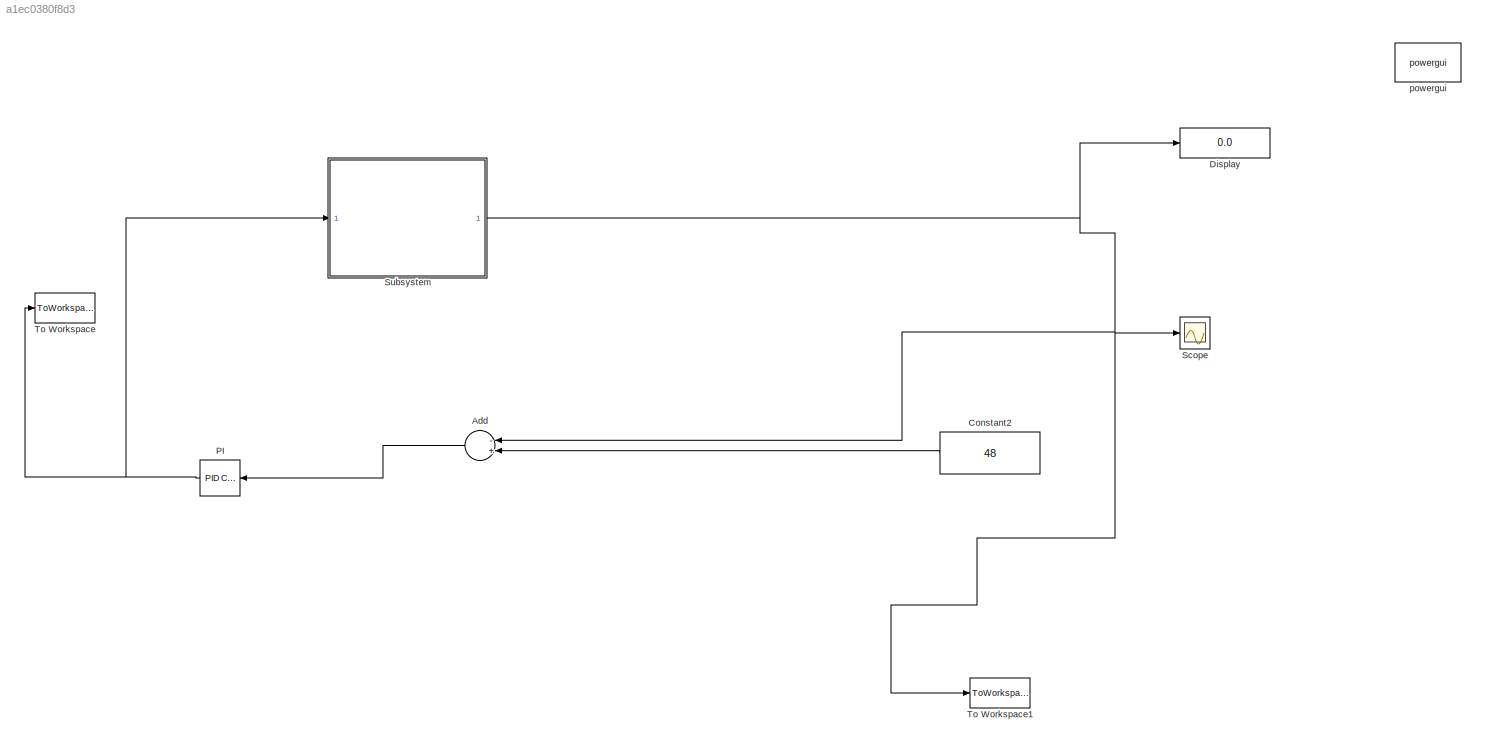
MODEL slx_a1ec0380f8d3
KIND model
CONFIG AbsTol = auto
CONFIG FixedStep = auto
CONFIG MaxStep = auto
CONFIG MinStep = auto
CONFIG RelTol = 1e-3
CONFIG SampleTimeConstraint = Unconstrained
CONFIG Solver = VariableStepAuto
CONFIG SolverMode = Auto
CONFIG SolverName = VariableStepAuto
CONFIG StartTime = 0.0
CONFIG StopTime = 20
BLOCK [Sum] Add
  InputSameDT = off
  Inputs = -+
  OutDataTypeStr = Inherit: Inherit via internal rule
  Ports = [2, 1]
  SaturateOnIntegerOverflow = off
BLOCK [Constant] Constant2
  Value = 48
BLOCK [Display] Display
  Decimation = 1
  Ports = [1]
BLOCK [Reference] PI  REF=simulink/Continuous/PID Controller
  Ports = [1, 1]
  SourceBlock = simulink/Continuous/PID Controller
  SourceType = PID 1dof
BLOCK [Scope] Scope
  Ports = [1]
  ScopeSpecificationString = Simulink.scopes.TimeScopeBlockCfg('CurrentConfiguration', extmgr.ConfigurationSet(extmgr.Configuration('Core','General UI',true),extmgr.Configuration('Core','Source UI',true),extmgr.Configuration('Sources','WiredSimulink',true),extmgr.Configuration('Visuals','Time Domain',true,'SerializedDisplays',{struct('MinYLimReal','-6.21866','MaxYLimReal','55.9679','YLabelReal','','MinYLimMag','0.00000','MaxY...<+1405ch>
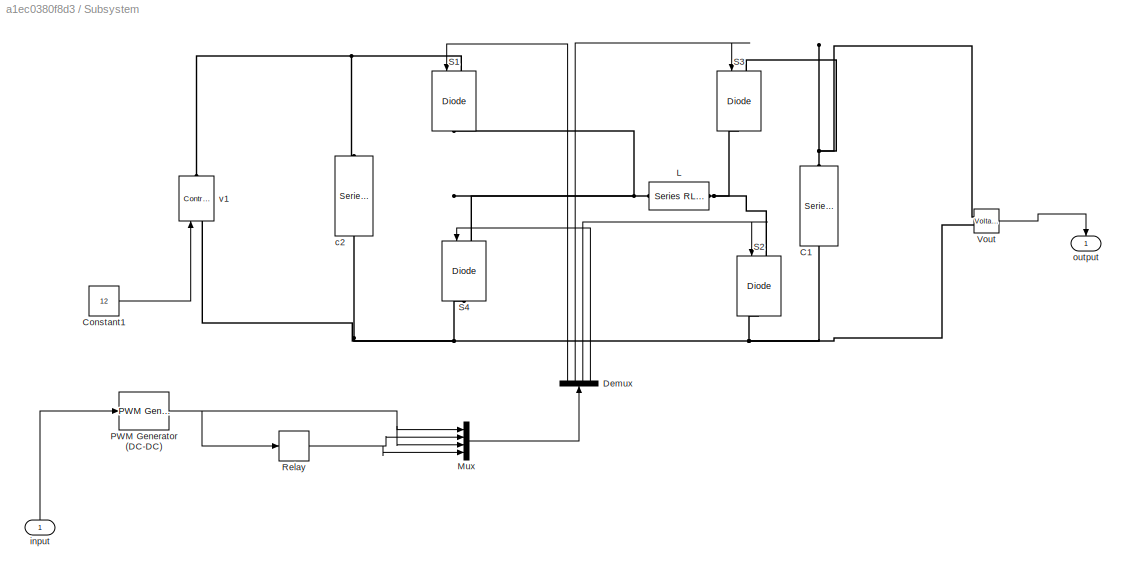
BLOCK [SubSystem] Subsystem
  Ports = [1, 1]
  RequestExecContextInheritance = off
  Variant = off
BLOCK [Reference] Subsystem/C1   REF=powerlib/Elements/Series RLC Branch
  Ports = [0, 0, 0, 0, 0, 1, 1]
  SourceBlock = powerlib/Elements/Series RLC Branch
  SourceType = Series RLC Branch
BLOCK [Constant] Subsystem/Constant1
  Value = 12
BLOCK [Demux] Subsystem/Demux
  DisplayOption = bar
  Ports = [1, 4]
BLOCK [Reference] Subsystem/L   REF=powerlib/Elements/Series RLC Branch
  Ports = [0, 0, 0, 0, 0, 1, 1]
  SourceBlock = powerlib/Elements/Series RLC Branch
  SourceType = Series RLC Branch
BLOCK [Mux] Subsystem/Mux
  DisplayOption = bar
  Ports = [4, 1]
BLOCK [Reference] Subsystem/PWM Generator (DC-DC)  REF=powerlib_meascontrol/Pulse & Signal
Generators/PWM Generator
(DC-DC)
  Ports = [1, 1]
  SourceBlock = powerlib_meascontrol/Pulse & Signal\nGenerators/PWM Generator\n(DC-DC)
  SourceType = PWM Generator (DC-DC)
BLOCK [Relay] Subsystem/Relay
  InputProcessing = Elements as channels (sample based)
  OffOutputValue = 1
  OnOutputValue = 0
BLOCK [Reference] Subsystem/S1  REF=powerlib/Power
Electronics/IGBT//Diode
  Ports = [1, 0, 0, 0, 0, 1, 1]
  SourceBlock = powerlib/Power\nElectronics/IGBT//Diode
  SourceType = IGBT/Diode
BLOCK [Reference] Subsystem/S2  REF=powerlib/Power
Electronics/IGBT//Diode
  Ports = [1, 0, 0, 0, 0, 1, 1]
  SourceBlock = powerlib/Power\nElectronics/IGBT//Diode
  SourceType = IGBT/Diode
BLOCK [Reference] Subsystem/S3  REF=powerlib/Power
Electronics/IGBT//Diode
  Ports = [1, 0, 0, 0, 0, 1, 1]
  SourceBlock = powerlib/Power\nElectronics/IGBT//Diode
  SourceType = IGBT/Diode
BLOCK [Reference] Subsystem/S4  REF=powerlib/Power
Electronics/IGBT//Diode
  Ports = [1, 0, 0, 0, 0, 1, 1]
  SourceBlock = powerlib/Power\nElectronics/IGBT//Diode
  SourceType = IGBT/Diode
BLOCK [Reference] Subsystem/Vout  REF=powerlib/Measurements/Voltage Measurement
  Ports = [0, 1, 0, 0, 0, 2]
  SourceBlock = powerlib/Measurements/Voltage Measurement
  SourceType = Voltage Measurement
  UserDataPersistent = on
BLOCK [Reference] Subsystem/c2   REF=powerlib/Elements/Series RLC Branch
  Ports = [0, 0, 0, 0, 0, 1, 1]
  SourceBlock = powerlib/Elements/Series RLC Branch
  SourceType = Series RLC Branch
BLOCK [Inport] Subsystem/input 
  IconDisplay = Port number
BLOCK [Outport] Subsystem/output
  IconDisplay = Port number
BLOCK [Reference] Subsystem/v1   REF=powerlib/Electrical
Sources/Controlled Voltage Source
  Ports = [1, 0, 0, 0, 0, 1, 1]
  SourceBlock = powerlib/Electrical\nSources/Controlled Voltage Source
  SourceType = Controlled Voltage Source
BLOCK [ToWorkspace] To Workspace
  FixptAsFi = on
  MaxDataPoints = inf
  Ports = [1]
  SampleTime = -1
  Save2DSignal = 3-D array (concatenate along third dimension)
  SaveFormat = Timeseries
  VariableName = input
BLOCK [ToWorkspace] To Workspace1
  FixptAsFi = on
  MaxDataPoints = inf
  Ports = [1]
  SampleTime = -1
  Save2DSignal = 3-D array (concatenate along third dimension)
  SaveFormat = Timeseries
  VariableName = output
BLOCK [Reference] powergui  REF=powerlib/powergui
  Ports = []
  Priority = 1
  SourceBlock = powerlib/powergui
  SourceType = PSB option menu block
  UserDataPersistent = on
LINE Add:1 -> PI:1
LINE Constant2:1 -> Add:2
NET PI:1 -> Subsystem:1, To Workspace:1
LINE Subsystem/Constant1:1 -> Subsystem/v1 :1
LINE Subsystem/Demux:1 -> Subsystem/S1:1
LINE Subsystem/Demux:2 -> Subsystem/S3:1
LINE Subsystem/Demux:3 -> Subsystem/S2:1
LINE Subsystem/Demux:4 -> Subsystem/S4:1
LINE Subsystem/Mux:1 -> Subsystem/Demux:1
NET Subsystem/PWM Generator (DC-DC):1 -> Subsystem/Mux:1, Subsystem/Mux:3, Subsystem/Relay:1
NET Subsystem/Relay:1 -> Subsystem/Mux:2, Subsystem/Mux:4
LINE Subsystem/Vout:1 -> Subsystem/output:1
LINE Subsystem/input :1 -> Subsystem/PWM Generator (DC-DC):1
NET Subsystem:1 -> Add:1, Display:1, Scope:1, To Workspace1:1
PNET net1: Subsystem/C1 :LConn1 -- Subsystem/S3:LConn1 -- Subsystem/Vout:LConn1
PNET net2: Subsystem/C1 :RConn1 -- Subsystem/S2:RConn1 -- Subsystem/S4:RConn1 -- Subsystem/Vout:LConn2 -- Subsystem/c2 :RConn1 -- Subsystem/v1 :LConn1
PNET net3: Subsystem/L :LConn1 -- Subsystem/S2:LConn1 -- Subsystem/S3:RConn1
PNET net4: Subsystem/L :RConn1 -- Subsystem/S1:RConn1 -- Subsystem/S4:LConn1
PNET net5: Subsystem/S1:LConn1 -- Subsystem/c2 :LConn1 -- Subsystem/v1 :RConn1
note: NET lines group one-source signal fan-out (src -> all destinations, sorted); 1:1 wires keep LINE; PNET lines group multi-terminal physical nets as a canonical sorted terminal list (undirected conserving connections); 2-terminal nets keep the pairwise PLINE form
